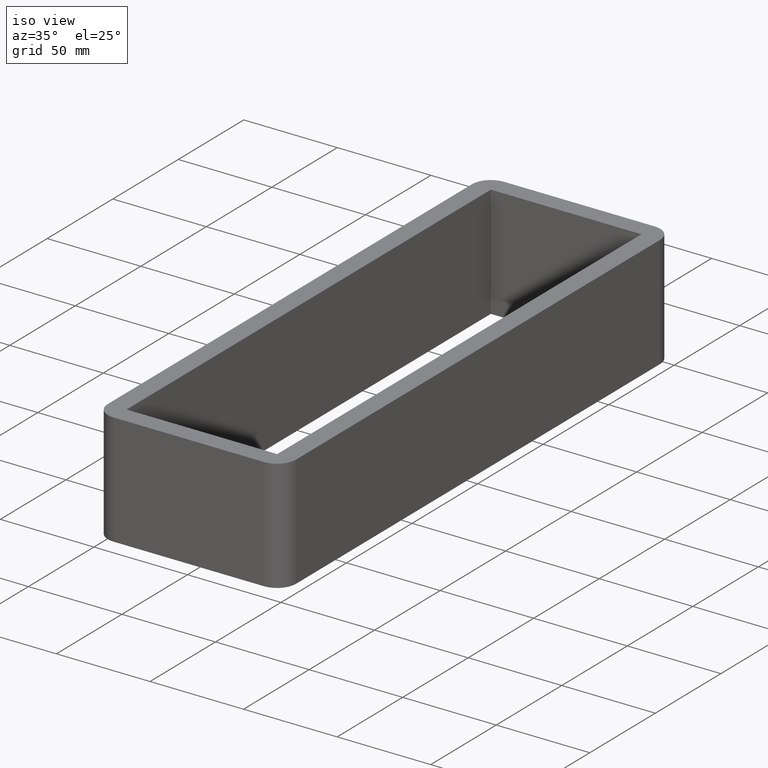
[diagram: clean part render]
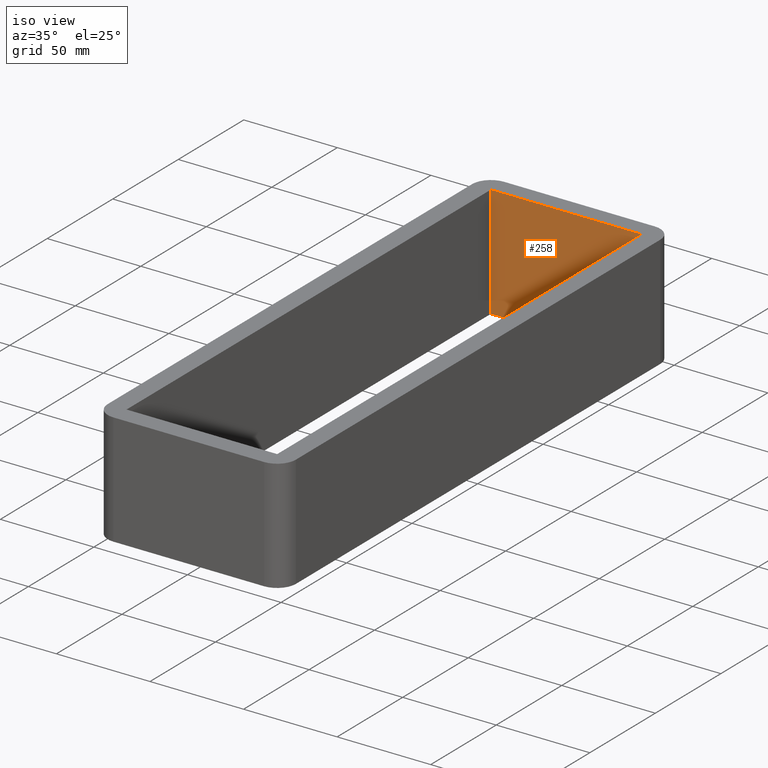
[diagram: same view with one face highlighted and labeled with its STEP entity id]
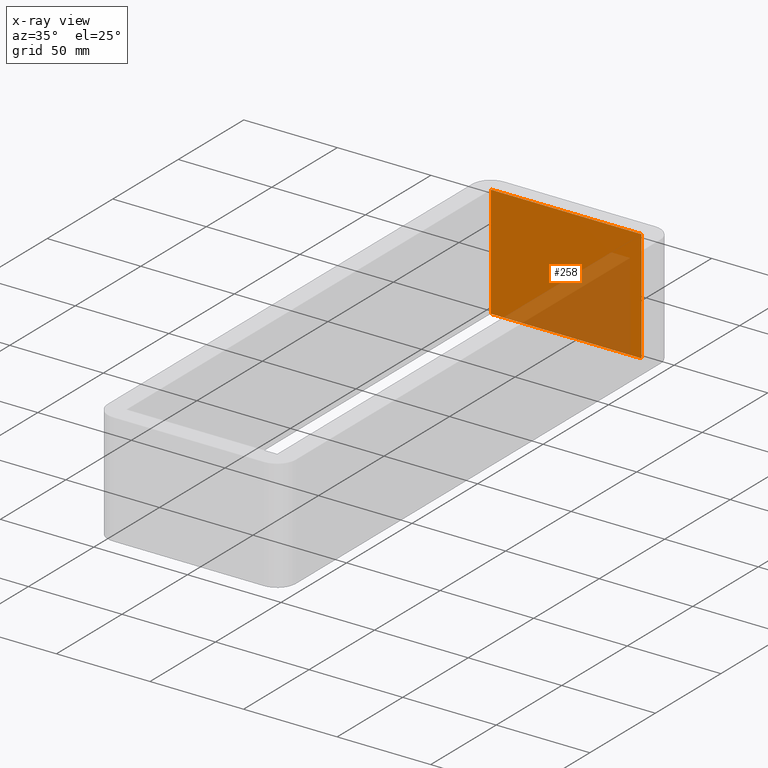
[diagram: x-ray of the same camera — body ghosted, the highlighted face saturated]
A machine part, iso view. The second image highlights one B-rep face of the part: STEP entity #258.
The next image is the same camera in x-ray: the body ghosted, the highlighted face saturated — about 38% of this face is hidden behind the body in this view.
In plain terms, the highlighted planar face has unit normal (0, 1, 0).
Its self-contained STEP definition (entity closure, byte-faithful):
#30=FACE_OUTER_BOUND('',#44,.T.);
#44=EDGE_LOOP('',(#179,#180,#181,#182));
#62=LINE('',#396,#90);
#63=LINE('',#399,#91);
#64=LINE('',#401,#92);
#65=LINE('',#402,#93);
#90=VECTOR('',#320,10.);
#91=VECTOR('',#323,10.);
#92=VECTOR('',#324,10.);
#93=VECTOR('',#325,10.);
#116=VERTEX_POINT('',#390);
#118=VERTEX_POINT('',#394);
#119=VERTEX_POINT('',#398);
#120=VERTEX_POINT('',#400);
#142=EDGE_CURVE('',#118,#116,#62,.T.);
#143=EDGE_CURVE('',#116,#119,#63,.T.);
#144=EDGE_CURVE('',#120,#118,#64,.T.);
#145=EDGE_CURVE('',#120,#119,#65,.T.);
#179=ORIENTED_EDGE('',*,*,#143,.F.);
#180=ORIENTED_EDGE('',*,*,#142,.F.);
#181=ORIENTED_EDGE('',*,*,#144,.F.);
#182=ORIENTED_EDGE('',*,*,#145,.T.);
#248=PLANE('',#292);
#258=ADVANCED_FACE('',(#30),#248,.F.);
#292=AXIS2_PLACEMENT_3D('',#397,#321,#322);
#320=DIRECTION('',(0.,0.,-1.));
#321=DIRECTION('center_axis',(0.,1.,0.));
#322=DIRECTION('ref_axis',(1.,0.,0.));
#323=DIRECTION('',(-1.,0.,0.));
#324=DIRECTION('',(1.,0.,0.));
#325=DIRECTION('',(0.,0.,-1.));
#390=CARTESIAN_POINT('',(40.2500000000036,138.999999999991,-60.));
#394=CARTESIAN_POINT('',(40.2500000000036,138.999999999991,0.));
#396=CARTESIAN_POINT('',(40.2500000000036,138.999999999991,0.));
#397=CARTESIAN_POINT('Origin',(-40.2499999999997,138.999999999991,0.));
#398=CARTESIAN_POINT('',(-40.2499999999997,138.999999999991,-60.));
#399=CARTESIAN_POINT('',(-20.1249999999999,138.999999999991,-60.));
#400=CARTESIAN_POINT('',(-40.2499999999997,138.999999999991,0.));
#401=CARTESIAN_POINT('',(-20.1249999999999,138.999999999991,0.));
#402=CARTESIAN_POINT('',(-40.2499999999997,138.999999999991,0.));